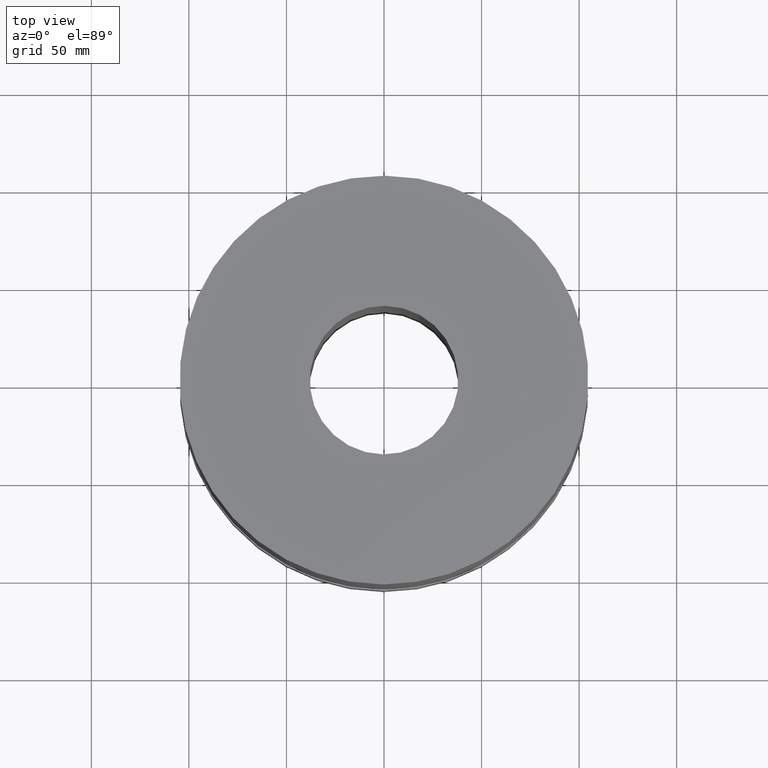
[diagram: clean part render]
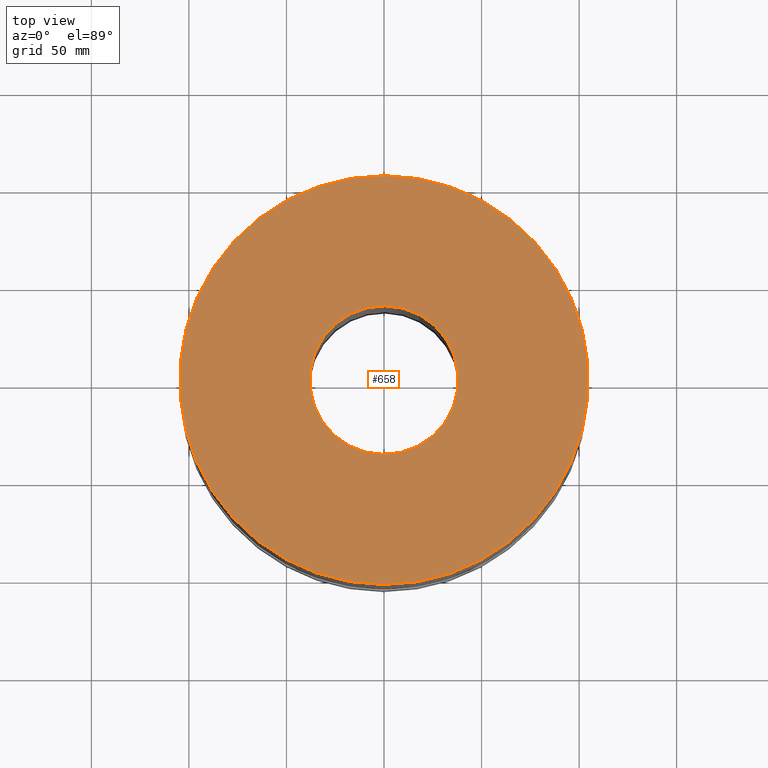
[diagram: same view with one face highlighted and labeled with its STEP entity id]
A machine part, top view. The second image highlights one B-rep face of the part: STEP entity #658.
In plain terms, the highlighted planar face has unit normal (0, 0, -1).
Its self-contained STEP definition (entity closure, byte-faithful):
#602=AXIS2_PLACEMENT_3D('Circle Axis2P3D',#600,#601,$) ;
#621=AXIS2_PLACEMENT_3D('Circle Axis2P3D',#619,#620,$) ;
#634=AXIS2_PLACEMENT_3D('Plane Axis2P3D',#631,#632,#633) ;
#642=AXIS2_PLACEMENT_3D('Circle Axis2P3D',#640,#641,$) ;
#651=AXIS2_PLACEMENT_3D('Circle Axis2P3D',#649,#650,$) ;
#597=CARTESIAN_POINT('Vertex',(1.97763034675,3.62002806781,8.75000000003)) ;
#600=CARTESIAN_POINT('Axis2P3D Location',(0.,0.,8.75000000003)) ;
#604=CARTESIAN_POINT('Vertex',(-1.97763034675,-3.62002806781,8.75000000003)) ;
#619=CARTESIAN_POINT('Axis2P3D Location',(0.,0.,8.75000000003)) ;
#631=CARTESIAN_POINT('Axis2P3D Location',(0.,4.12500000002,8.75000000003)) ;
#640=CARTESIAN_POINT('Axis2P3D Location',(0.,0.,8.75000000003)) ;
#644=CARTESIAN_POINT('Vertex',(-0.719138307909,-1.31637384284,8.75000000003)) ;
#646=CARTESIAN_POINT('Vertex',(0.719138307909,1.31637384284,8.75000000003)) ;
#649=CARTESIAN_POINT('Axis2P3D Location',(0.,0.,8.75000000003)) ;
#601=DIRECTION('Axis2P3D Direction',(0.,0.,-0.0393700787402)) ;
#620=DIRECTION('Axis2P3D Direction',(0.,0.,-0.0393700787402)) ;
#632=DIRECTION('Axis2P3D Direction',(0.,0.,-0.0393700787402)) ;
#633=DIRECTION('Axis2P3D XDirection',(0.0393700787402,0.,0.)) ;
#641=DIRECTION('Axis2P3D Direction',(0.,0.,-0.0393700787402)) ;
#650=DIRECTION('Axis2P3D Direction',(0.,0.,-0.0393700787402)) ;
#637=ORIENTED_EDGE('',*,*,#606,.F.) ;
#638=ORIENTED_EDGE('',*,*,#623,.F.) ;
#655=ORIENTED_EDGE('',*,*,#648,.T.) ;
#656=ORIENTED_EDGE('',*,*,#653,.T.) ;
#657=FACE_BOUND('',#654,.T.) ;
#658=ADVANCED_FACE('PartBody',(#639,#657),#635,.F.) ;
#603=CIRCLE('generated circle',#602,4.12500000002) ;
#622=CIRCLE('generated circle',#621,4.12500000002) ;
#643=CIRCLE('generated circle',#642,1.50000000001) ;
#652=CIRCLE('generated circle',#651,1.50000000001) ;
#606=EDGE_CURVE('',#598,#605,#603,.T.) ;
#623=EDGE_CURVE('',#605,#598,#622,.T.) ;
#648=EDGE_CURVE('',#645,#647,#643,.T.) ;
#653=EDGE_CURVE('',#647,#645,#652,.T.) ;
#636=EDGE_LOOP('',(#637,#638)) ;
#654=EDGE_LOOP('',(#655,#656)) ;
#639=FACE_OUTER_BOUND('',#636,.T.) ;
#635=PLANE('',#634) ;
#598=VERTEX_POINT('',#597) ;
#605=VERTEX_POINT('',#604) ;
#645=VERTEX_POINT('',#644) ;
#647=VERTEX_POINT('',#646) ;